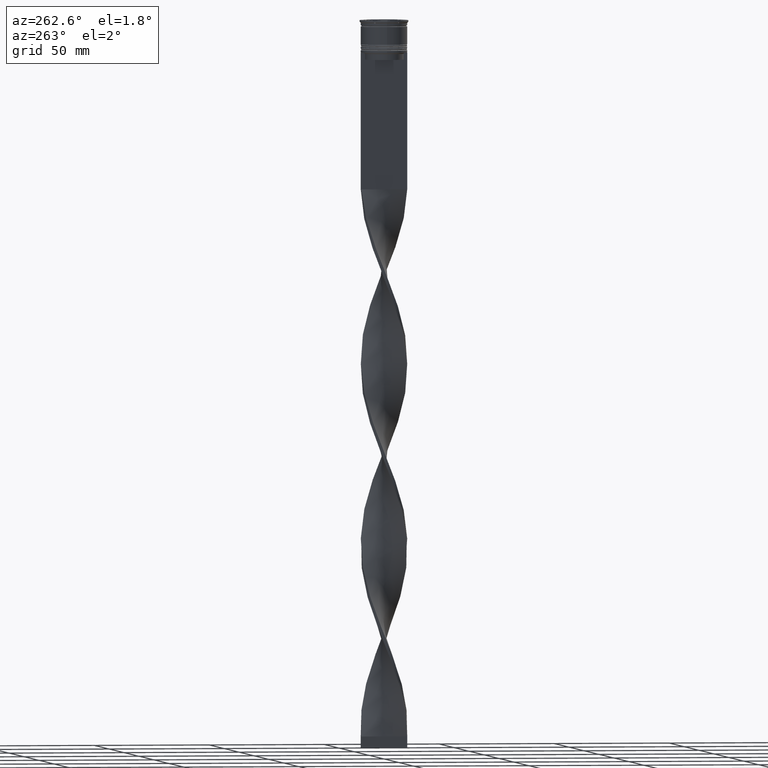
[diagram: clean part render]
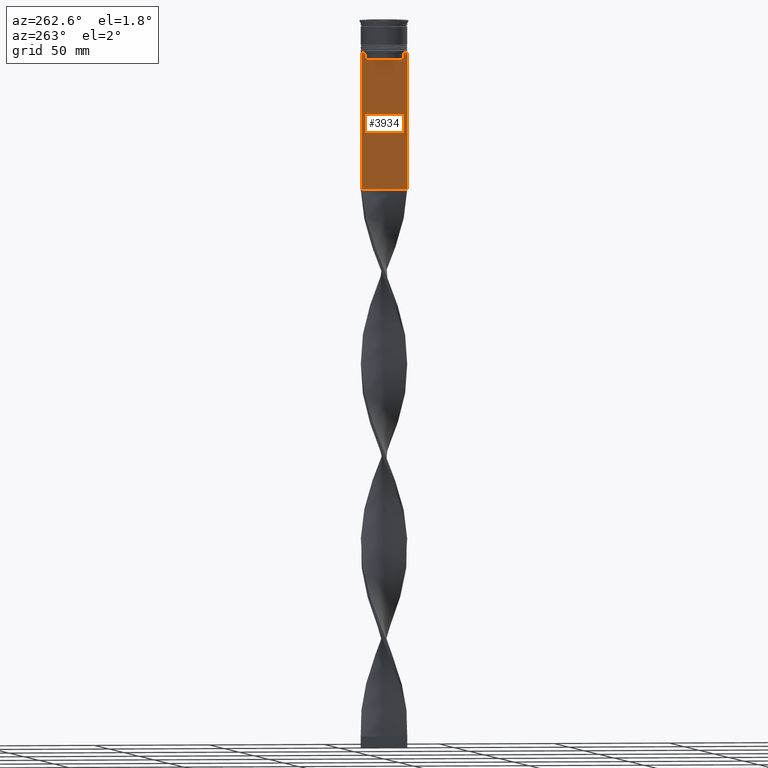
[diagram: same view with one face highlighted and labeled with its STEP entity id]
A machine part, auxiliary view. The second image highlights one B-rep face of the part: STEP entity #3934.
In plain terms, the highlighted planar face has unit normal (-1, 0, 0).
Its self-contained STEP definition (entity closure, byte-faithful):
#13 = VECTOR ( 'NONE', #513, 1000.000000000000000 ) ;
#23 = VECTOR ( 'NONE', #863, 1000.000000000000000 ) ;
#97 = CARTESIAN_POINT ( 'NONE',  ( -0.7499999999999997780, -10.00000000000000533, 6.056171120131581098 ) ) ;
#163 = CARTESIAN_POINT ( 'NONE',  ( -0.7499999999999997780, 8.868342573446296839, -14.00000000000000178 ) ) ;
#168 = LINE ( 'NONE', #2173, #2219 ) ;
#196 = CARTESIAN_POINT ( 'NONE',  ( -0.7499999999999997780, -10.00000000000000533, -14.00000000000000178 ) ) ;
#215 = CARTESIAN_POINT ( 'NONE',  ( -0.7499999999999997780, -8.533766903463440912, -14.33335220807192201 ) ) ;
#226 = DIRECTION ( 'NONE',  ( -1.000000000000000000, 0.000000000000000000, 0.000000000000000000 ) ) ;
#237 = CARTESIAN_POINT ( 'NONE',  ( -0.7499999999999997780, -8.366450860430608927, -14.50000000000000000 ) ) ;
#265 = CARTESIAN_POINT ( 'NONE',  ( -0.7499999999999997780, -10.00000000000000533, 6.056171120131581098 ) ) ;
#321 = EDGE_LOOP ( 'NONE', ( #623, #4221, #2149, #1547, #4060, #2293, #4006, #2038, #654, #1569, #645, #2975 ) ) ;
#352 = VECTOR ( 'NONE', #1639, 1000.000000000000000 ) ;
#431 = CARTESIAN_POINT ( 'NONE',  ( -0.7499999999999997780, -8.868342573446296839, -14.00000000000000178 ) ) ;
#512 = EDGE_CURVE ( 'NONE', #2582, #3802, #2167, .T. ) ;
#513 = DIRECTION ( 'NONE',  ( 0.000000000000000000, -1.000000000000000000, 0.000000000000000000 ) ) ;
#623 = ORIENTED_EDGE ( 'NONE', *, *, #2864, .F. ) ;
#645 = ORIENTED_EDGE ( 'NONE', *, *, #3215, .F. ) ;
#654 = ORIENTED_EDGE ( 'NONE', *, *, #3890, .F. ) ;
#696 = VECTOR ( 'NONE', #3335, 1000.000000000000000 ) ;
#762 = CARTESIAN_POINT ( 'NONE',  ( -0.7499999999999997780, -8.366450860430608927, -17.00000000000000000 ) ) ;
#858 = CARTESIAN_POINT ( 'NONE',  ( -0.7499999999999997780, -9.871550030263740894, -14.00000000000000178 ) ) ;
#863 = DIRECTION ( 'NONE',  ( 0.000000000000000000, -1.000000000000000000, 0.000000000000000000 ) ) ;
#925 = CARTESIAN_POINT ( 'NONE',  ( -0.7499999999999997780, 8.701063075415252257, -14.16668448247791723 ) ) ;
#944 = CARTESIAN_POINT ( 'NONE',  ( -0.7499999999999997780, -10.00000000000000533, -14.00000000000000178 ) ) ;
#1009 = CARTESIAN_POINT ( 'NONE',  ( -0.7499999999999997780, 8.868342573446296839, -14.00000000000000178 ) ) ;
#1063 = VERTEX_POINT ( 'NONE', #3650 ) ;
#1121 = LINE ( 'NONE', #2119, #1932 ) ;
#1154 = EDGE_CURVE ( 'NONE', #2418, #1902, #2891, .T. ) ;
#1167 = DIRECTION ( 'NONE',  ( 0.000000000000000000, 0.000000000000000000, 1.000000000000000000 ) ) ;
#1209 = EDGE_CURVE ( 'NONE', #2338, #1063, #1968, .T. ) ;
#1213 = VERTEX_POINT ( 'NONE', #944 ) ;
#1215 = CARTESIAN_POINT ( 'NONE',  ( -0.7499999999999997780, -10.00000000000000533, -14.00000000000000178 ) ) ;
#1229 = CARTESIAN_POINT ( 'NONE',  ( -0.7499999999999997780, -8.701063080777123204, -14.16668447713511547 ) ) ;
#1331 = VERTEX_POINT ( 'NONE', #163 ) ;
#1416 = LINE ( 'NONE', #2446, #1799 ) ;
#1519 = EDGE_CURVE ( 'NONE', #1534, #1331, #4240, .T. ) ;
#1534 = VERTEX_POINT ( 'NONE', #3179 ) ;
#1547 = ORIENTED_EDGE ( 'NONE', *, *, #1894, .T. ) ;
#1569 = ORIENTED_EDGE ( 'NONE', *, *, #2845, .F. ) ;
#1639 = DIRECTION ( 'NONE',  ( 0.000000000000000000, 0.000000000000000000, -1.000000000000000000 ) ) ;
#1775 = VERTEX_POINT ( 'NONE', #1997 ) ;
#1799 = VECTOR ( 'NONE', #4144, 1000.000000000000000 ) ;
#1863 = EDGE_CURVE ( 'NONE', #3802, #1213, #1416, .T. ) ;
#1882 = FACE_OUTER_BOUND ( 'NONE', #321, .T. ) ;
#1894 = EDGE_CURVE ( 'NONE', #1775, #1902, #1121, .T. ) ;
#1902 = VERTEX_POINT ( 'NONE', #3067 ) ;
#1930 = CARTESIAN_POINT ( 'NONE',  ( -0.7499999999999997780, 8.533766897779926808, -14.33335221373273782 ) ) ;
#1932 = VECTOR ( 'NONE', #2056, 1000.000000000000000 ) ;
#1935 = CARTESIAN_POINT ( 'NONE',  ( -0.7499999999999997780, 8.366450860430608927, 0.000000000000000000 ) ) ;
#1968 = LINE ( 'NONE', #1935, #352 ) ;
#1974 = CARTESIAN_POINT ( 'NONE',  ( -0.7499999999999997780, 8.366450860430608927, -14.50000000000000000 ) ) ;
#1997 = CARTESIAN_POINT ( 'NONE',  ( -0.7499999999999997780, 9.999999999999998224, -14.00000000000000178 ) ) ;
#2038 = ORIENTED_EDGE ( 'NONE', *, *, #512, .F. ) ;
#2056 = DIRECTION ( 'NONE',  ( 0.000000000000000000, 0.000000000000000000, -1.000000000000000000 ) ) ;
#2119 = CARTESIAN_POINT ( 'NONE',  ( -0.7499999999999997780, 9.999999999999998224, 6.056171120131581098 ) ) ;
#2149 = ORIENTED_EDGE ( 'NONE', *, *, #3745, .F. ) ;
#2167 = LINE ( 'NONE', #3508, #13 ) ;
#2173 = CARTESIAN_POINT ( 'NONE',  ( -0.7499999999999997780, 8.400000000000003908, -17.00000000000000000 ) ) ;
#2204 = DIRECTION ( 'NONE',  ( 0.000000000000000000, -1.000000000000000000, 0.000000000000000000 ) ) ;
#2219 = VECTOR ( 'NONE', #4178, 1000.000000000000000 ) ;
#2293 = ORIENTED_EDGE ( 'NONE', *, *, #2625, .F. ) ;
#2338 = VERTEX_POINT ( 'NONE', #1974 ) ;
#2418 = VERTEX_POINT ( 'NONE', #3043 ) ;
#2446 = CARTESIAN_POINT ( 'NONE',  ( -0.7499999999999997780, -10.00000000000000533, -14.00000000000000178 ) ) ;
#2476 = B_SPLINE_CURVE_WITH_KNOTS ( 'NONE', 3,
 ( #1009, #925, #1930, #3585 ),
 .UNSPECIFIED., .F., .F.,
 ( 4, 4 ),
 ( 0.01512225952876174867, 0.01583070519299695222 ),
 .UNSPECIFIED. ) ;
#2582 = VERTEX_POINT ( 'NONE', #431 ) ;
#2613 = CARTESIAN_POINT ( 'NONE',  ( -0.7499999999999997780, -8.366450860430608927, 0.000000000000000000 ) ) ;
#2625 = EDGE_CURVE ( 'NONE', #1213, #2418, #3062, .T. ) ;
#2651 = DIRECTION ( 'NONE',  ( 0.000000000000000000, 1.000000000000000000, 0.000000000000000000 ) ) ;
#2729 = DIRECTION ( 'NONE',  ( 0.000000000000000000, 0.000000000000000000, -1.000000000000000000 ) ) ;
#2840 = VECTOR ( 'NONE', #2729, 1000.000000000000000 ) ;
#2845 = EDGE_CURVE ( 'NONE', #3138, #3019, #3631, .T. ) ;
#2864 = EDGE_CURVE ( 'NONE', #1331, #2338, #2476, .T. ) ;
#2891 = LINE ( 'NONE', #4212, #3839 ) ;
#2975 = ORIENTED_EDGE ( 'NONE', *, *, #1209, .F. ) ;
#3019 = VERTEX_POINT ( 'NONE', #3731 ) ;
#3043 = CARTESIAN_POINT ( 'NONE',  ( -0.7499999999999998890, -10.00000000000000533, -73.00000000000001421 ) ) ;
#3062 = LINE ( 'NONE', #97, #2840 ) ;
#3067 = CARTESIAN_POINT ( 'NONE',  ( -0.7499999999999997780, 9.999999999999998224, -73.00000000000001421 ) ) ;
#3138 = VERTEX_POINT ( 'NONE', #762 ) ;
#3176 = LINE ( 'NONE', #196, #3416 ) ;
#3179 = CARTESIAN_POINT ( 'NONE',  ( -0.7499999999999997780, 9.871550030263740894, -14.00000000000000178 ) ) ;
#3215 = EDGE_CURVE ( 'NONE', #1063, #3138, #168, .T. ) ;
#3252 = PLANE ( 'NONE',  #3350 ) ;
#3335 = DIRECTION ( 'NONE',  ( -0.000000000000000000, -0.000000000000000000, 1.000000000000000000 ) ) ;
#3350 = AXIS2_PLACEMENT_3D ( 'NONE', #265, #226, #1167 ) ;
#3416 = VECTOR ( 'NONE', #2204, 1000.000000000000000 ) ;
#3508 = CARTESIAN_POINT ( 'NONE',  ( -0.7499999999999997780, -10.00000000000000533, -14.00000000000000178 ) ) ;
#3585 = CARTESIAN_POINT ( 'NONE',  ( -0.7499999999999997780, 8.366450860430608927, -14.50000000000000000 ) ) ;
#3631 = LINE ( 'NONE', #2613, #696 ) ;
#3650 = CARTESIAN_POINT ( 'NONE',  ( -0.7499999999999997780, 8.366450860430608927, -17.00000000000000000 ) ) ;
#3731 = CARTESIAN_POINT ( 'NONE',  ( -0.7499999999999997780, -8.366450860430608927, -14.50000000000000000 ) ) ;
#3745 = EDGE_CURVE ( 'NONE', #1775, #1534, #3176, .T. ) ;
#3802 = VERTEX_POINT ( 'NONE', #858 ) ;
#3839 = VECTOR ( 'NONE', #2651, 1000.000000000000000 ) ;
#3890 = EDGE_CURVE ( 'NONE', #3019, #2582, #4197, .T. ) ;
#3934 = ADVANCED_FACE ( 'NONE', ( #1882 ), #3252, .T. ) ;
#4006 = ORIENTED_EDGE ( 'NONE', *, *, #1863, .F. ) ;
#4060 = ORIENTED_EDGE ( 'NONE', *, *, #1154, .F. ) ;
#4144 = DIRECTION ( 'NONE',  ( 0.000000000000000000, -1.000000000000000000, 0.000000000000000000 ) ) ;
#4149 = CARTESIAN_POINT ( 'NONE',  ( -0.7499999999999997780, -8.868342573446296839, -14.00000000000000178 ) ) ;
#4178 = DIRECTION ( 'NONE',  ( 0.000000000000000000, -1.000000000000000000, 0.000000000000000000 ) ) ;
#4197 = B_SPLINE_CURVE_WITH_KNOTS ( 'NONE', 3,
 ( #237, #215, #1229, #4149 ),
 .UNSPECIFIED., .F., .F.,
 ( 4, 4 ),
 ( 0.03866293624047253963, 0.03937282246709321309 ),
 .UNSPECIFIED. ) ;
#4212 = CARTESIAN_POINT ( 'NONE',  ( -0.7499999999999997780, -10.00000000000000533, -73.00000000000001421 ) ) ;
#4221 = ORIENTED_EDGE ( 'NONE', *, *, #1519, .F. ) ;
#4240 = LINE ( 'NONE', #1215, #23 ) ;